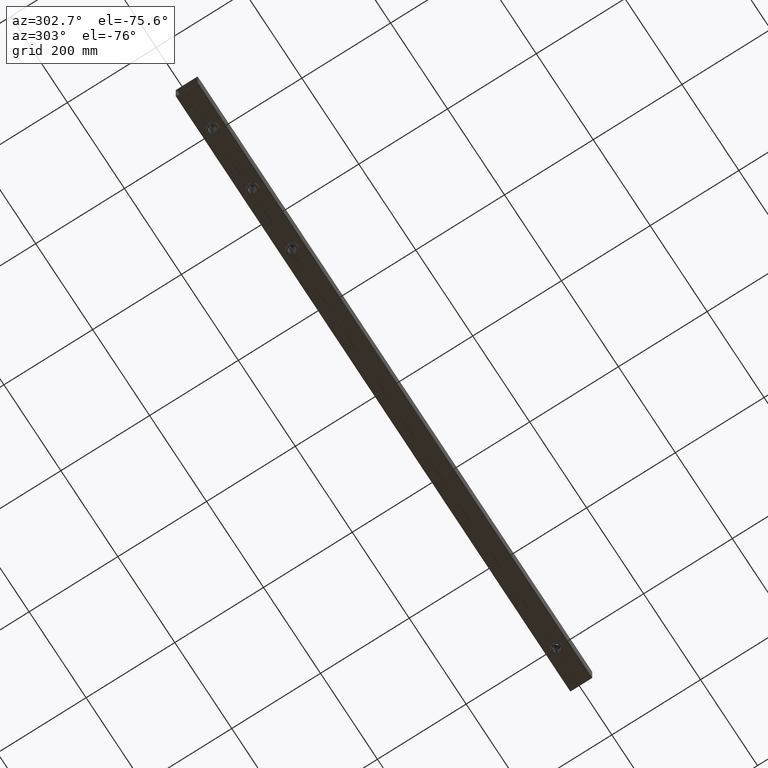
[diagram: clean part render]
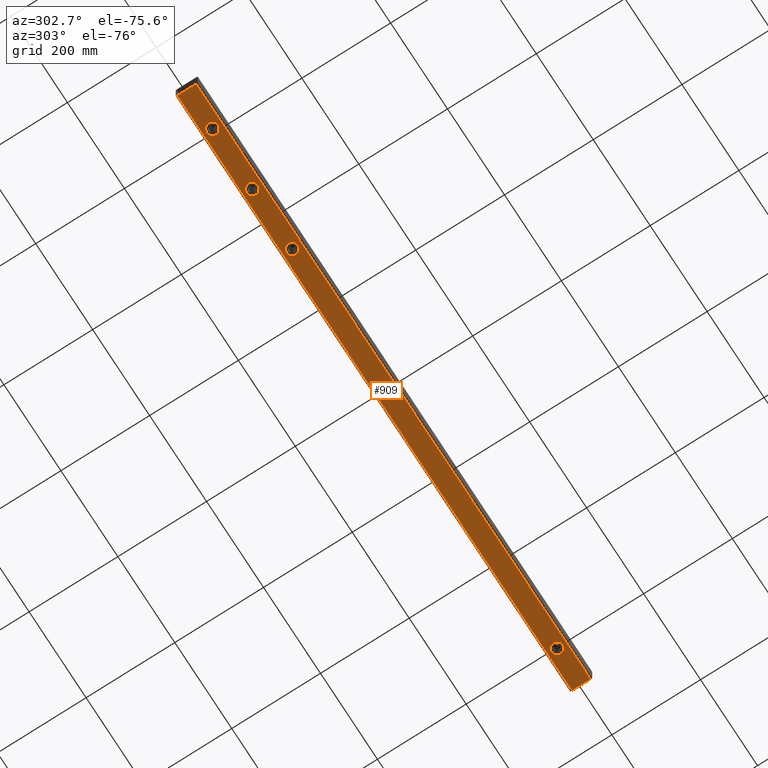
[diagram: same view with one face highlighted and labeled with its STEP entity id]
A machine part, auxiliary view. The second image highlights one B-rep face of the part: STEP entity #909.
In plain terms, the highlighted planar face has unit normal (-0, 0, 1).
Its self-contained STEP definition (entity closure, byte-faithful):
#3 = DIRECTION ( 'NONE',  ( 1.000000000000000000, 0.000000000000000000, 0.000000000000000000 ) ) ;
#32 = CARTESIAN_POINT ( 'NONE',  ( -615.1000000000002501, 2.548126824595394330E-13, -25.00000000000007105 ) ) ;
#35 = ORIENTED_EDGE ( 'NONE', *, *, #1179, .T. ) ;
#45 = AXIS2_PLACEMENT_3D ( 'NONE', #266, #651, #948 ) ;
#56 = VECTOR ( 'NONE', #567, 1000.000000000000000 ) ;
#80 = AXIS2_PLACEMENT_3D ( 'NONE', #1816, #1824, #1980 ) ;
#110 = CARTESIAN_POINT ( 'NONE',  ( -692.5000000000000000, 20.99999999999962697, -25.00000000000007461 ) ) ;
#120 = AXIS2_PLACEMENT_3D ( 'NONE', #2041, #530, #926 ) ;
#148 = EDGE_CURVE ( 'NONE', #1468, #637, #742, .T. ) ;
#177 = CARTESIAN_POINT ( 'NONE',  ( -692.5000000000000000, 20.99999999999962697, -25.00000000000007461 ) ) ;
#178 = VERTEX_POINT ( 'NONE', #32 ) ;
#191 = VERTEX_POINT ( 'NONE', #1054 ) ;
#223 = ORIENTED_EDGE ( 'NONE', *, *, #1552, .T. ) ;
#238 = PLANE ( 'NONE',  #1728 ) ;
#266 = CARTESIAN_POINT ( 'NONE',  ( -602.5000000000001137, 2.532696274926137348E-13, -25.00000000000007105 ) ) ;
#291 = ORIENTED_EDGE ( 'NONE', *, *, #1311, .T. ) ;
#309 = DIRECTION ( 'NONE',  ( 1.000000000000000000, 0.000000000000000000, 0.000000000000000000 ) ) ;
#322 = DIRECTION ( 'NONE',  ( 0.000000000000000000, 0.000000000000000000, 1.000000000000000000 ) ) ;
#410 = CIRCLE ( 'NONE', #45, 12.60000000000005471 ) ;
#435 = CARTESIAN_POINT ( 'NONE',  ( -335.1000000000001364, 2.562695891895751093E-13, -25.00000000000007105 ) ) ;
#449 = AXIS2_PLACEMENT_3D ( 'NONE', #1774, #937, #3 ) ;
#477 = ORIENTED_EDGE ( 'NONE', *, *, #1380, .T. ) ;
#508 = EDGE_CURVE ( 'NONE', #897, #834, #1560, .T. ) ;
#524 = DIRECTION ( 'NONE',  ( 1.000000000000000000, 3.061616997868382648E-16, -0.000000000000000000 ) ) ;
#530 = DIRECTION ( 'NONE',  ( 0.000000000000000000, 0.000000000000000000, 1.000000000000000000 ) ) ;
#542 = EDGE_CURVE ( 'NONE', #834, #897, #1301, .T. ) ;
#559 = ORIENTED_EDGE ( 'NONE', *, *, #542, .T. ) ;
#567 = DIRECTION ( 'NONE',  ( 1.000000000000000000, 3.061616997868382648E-16, -0.000000000000000000 ) ) ;
#586 = DIRECTION ( 'NONE',  ( 0.000000000000000000, -1.000000000000000000, 3.469446951953613794E-15 ) ) ;
#607 = DIRECTION ( 'NONE',  ( 0.000000000000000000, 0.000000000000000000, 1.000000000000000000 ) ) ;
#637 = VERTEX_POINT ( 'NONE', #1707 ) ;
#651 = DIRECTION ( 'NONE',  ( 0.000000000000000000, 0.000000000000000000, 1.000000000000000000 ) ) ;
#653 = CARTESIAN_POINT ( 'NONE',  ( -589.9000000000000909, 2.532696274926137348E-13, -25.00000000000007105 ) ) ;
#656 = CARTESIAN_POINT ( 'NONE',  ( -322.5000000000001137, 2.547265342226494616E-13, -25.00000000000007105 ) ) ;
#660 = CARTESIAN_POINT ( 'NONE',  ( 607.4999999999998863, 2.547265342226494616E-13, -25.00000000000007105 ) ) ;
#670 = CIRCLE ( 'NONE', #953, 12.59999999999999964 ) ;
#672 = EDGE_LOOP ( 'NONE', ( #291, #1983 ) ) ;
#673 = DIRECTION ( 'NONE',  ( 0.000000000000000000, 0.000000000000000000, 1.000000000000000000 ) ) ;
#716 = VERTEX_POINT ( 'NONE', #1747 ) ;
#726 = CIRCLE ( 'NONE', #449, 12.59999999999994458 ) ;
#742 = LINE ( 'NONE', #2068, #56 ) ;
#750 = CARTESIAN_POINT ( 'NONE',  ( -692.5000000000000000, -21.00000000000038369, -24.99999999999992895 ) ) ;
#759 = FACE_BOUND ( 'NONE', #672, .T. ) ;
#811 = VERTEX_POINT ( 'NONE', #911 ) ;
#813 = CARTESIAN_POINT ( 'NONE',  ( 692.5000000000000000, -20.99999999999996092, -24.99999999999992895 ) ) ;
#817 = AXIS2_PLACEMENT_3D ( 'NONE', #1004, #1672, #1530 ) ;
#823 = ORIENTED_EDGE ( 'NONE', *, *, #508, .T. ) ;
#834 = VERTEX_POINT ( 'NONE', #1098 ) ;
#837 = CIRCLE ( 'NONE', #120, 12.59999999999999964 ) ;
#858 = CARTESIAN_POINT ( 'NONE',  ( -692.5000000000000000, -21.00000000000038369, -24.99999999999992895 ) ) ;
#882 = EDGE_CURVE ( 'NONE', #716, #1137, #670, .T. ) ;
#897 = VERTEX_POINT ( 'NONE', #435 ) ;
#909 = ADVANCED_FACE ( 'NONE', ( #759, #1756, #1916, #1766, #969 ), #238, .F. ) ;
#911 = CARTESIAN_POINT ( 'NONE',  ( 594.8999999999999773, 2.562695891895751093E-13, -25.00000000000007105 ) ) ;
#919 = DIRECTION ( 'NONE',  ( -1.062211776130383366E-30, 3.469446951953613794E-15, 1.000000000000000000 ) ) ;
#926 = DIRECTION ( 'NONE',  ( 1.000000000000000000, 0.000000000000000000, 0.000000000000000000 ) ) ;
#933 = DIRECTION ( 'NONE',  ( -0.000000000000000000, -1.000000000000000000, 3.469446951953613400E-15 ) ) ;
#937 = DIRECTION ( 'NONE',  ( 0.000000000000000000, 0.000000000000000000, 1.000000000000000000 ) ) ;
#938 = CIRCLE ( 'NONE', #80, 12.60000000000005471 ) ;
#948 = DIRECTION ( 'NONE',  ( 1.000000000000000000, 0.000000000000000000, 0.000000000000000000 ) ) ;
#953 = AXIS2_PLACEMENT_3D ( 'NONE', #1789, #607, #1441 ) ;
#969 = FACE_OUTER_BOUND ( 'NONE', #1835, .T. ) ;
#977 = ORIENTED_EDGE ( 'NONE', *, *, #1013, .F. ) ;
#1004 = CARTESIAN_POINT ( 'NONE',  ( -322.5000000000001137, 2.547265342226494616E-13, -25.00000000000007105 ) ) ;
#1013 = EDGE_CURVE ( 'NONE', #1523, #1468, #1024, .T. ) ;
#1024 = LINE ( 'NONE', #858, #2001 ) ;
#1054 = CARTESIAN_POINT ( 'NONE',  ( 620.0999999999999091, 2.547265342226494616E-13, -25.00000000000007105 ) ) ;
#1057 = VERTEX_POINT ( 'NONE', #653 ) ;
#1069 = VECTOR ( 'NONE', #933, 1000.000000000000000 ) ;
#1083 = CIRCLE ( 'NONE', #1574, 12.59999999999994458 ) ;
#1098 = CARTESIAN_POINT ( 'NONE',  ( -309.9000000000001478, 2.547265342226494616E-13, -25.00000000000007105 ) ) ;
#1104 = LINE ( 'NONE', #813, #1069 ) ;
#1137 = VERTEX_POINT ( 'NONE', #1299 ) ;
#1145 = DIRECTION ( 'NONE',  ( -0.000000000000000000, -1.000000000000000000, 3.469446951953613400E-15 ) ) ;
#1179 = EDGE_CURVE ( 'NONE', #1137, #716, #837, .T. ) ;
#1224 = EDGE_LOOP ( 'NONE', ( #1406, #35 ) ) ;
#1299 = CARTESIAN_POINT ( 'NONE',  ( -475.1000000000001364, 2.562695891895751093E-13, -25.00000000000007105 ) ) ;
#1301 = CIRCLE ( 'NONE', #817, 12.59999999999999964 ) ;
#1304 = VECTOR ( 'NONE', #524, 1000.000000000000000 ) ;
#1311 = EDGE_CURVE ( 'NONE', #191, #811, #726, .T. ) ;
#1361 = CARTESIAN_POINT ( 'NONE',  ( 692.5000000000000000, 21.00000000000004974, -25.00000000000007461 ) ) ;
#1380 = EDGE_CURVE ( 'NONE', #1057, #178, #938, .T. ) ;
#1406 = ORIENTED_EDGE ( 'NONE', *, *, #882, .T. ) ;
#1441 = DIRECTION ( 'NONE',  ( 1.000000000000000000, 0.000000000000000000, 0.000000000000000000 ) ) ;
#1468 = VERTEX_POINT ( 'NONE', #1968 ) ;
#1523 = VERTEX_POINT ( 'NONE', #110 ) ;
#1530 = DIRECTION ( 'NONE',  ( 1.000000000000000000, 0.000000000000000000, 0.000000000000000000 ) ) ;
#1552 = EDGE_CURVE ( 'NONE', #178, #1057, #410, .T. ) ;
#1560 = CIRCLE ( 'NONE', #1902, 12.59999999999999964 ) ;
#1574 = AXIS2_PLACEMENT_3D ( 'NONE', #660, #673, #2046 ) ;
#1579 = EDGE_LOOP ( 'NONE', ( #477, #223 ) ) ;
#1610 = EDGE_CURVE ( 'NONE', #811, #191, #1083, .T. ) ;
#1672 = DIRECTION ( 'NONE',  ( 0.000000000000000000, 0.000000000000000000, 1.000000000000000000 ) ) ;
#1695 = LINE ( 'NONE', #177, #1304 ) ;
#1702 = ORIENTED_EDGE ( 'NONE', *, *, #1936, .T. ) ;
#1707 = CARTESIAN_POINT ( 'NONE',  ( 692.5000000000000000, -20.99999999999996092, -24.99999999999992895 ) ) ;
#1728 = AXIS2_PLACEMENT_3D ( 'NONE', #750, #919, #586 ) ;
#1742 = ORIENTED_EDGE ( 'NONE', *, *, #2099, .T. ) ;
#1747 = CARTESIAN_POINT ( 'NONE',  ( -449.9000000000001478, 2.547265342226494111E-13, -25.00000000000007105 ) ) ;
#1756 = FACE_BOUND ( 'NONE', #1579, .T. ) ;
#1766 = FACE_BOUND ( 'NONE', #2092, .T. ) ;
#1774 = CARTESIAN_POINT ( 'NONE',  ( 607.4999999999998863, 2.547265342226494616E-13, -25.00000000000007105 ) ) ;
#1789 = CARTESIAN_POINT ( 'NONE',  ( -462.5000000000001137, 2.547265342226494111E-13, -25.00000000000007105 ) ) ;
#1816 = CARTESIAN_POINT ( 'NONE',  ( -602.5000000000001137, 2.532696274926137348E-13, -25.00000000000007105 ) ) ;
#1824 = DIRECTION ( 'NONE',  ( 0.000000000000000000, 0.000000000000000000, 1.000000000000000000 ) ) ;
#1835 = EDGE_LOOP ( 'NONE', ( #1702, #2002, #977, #1742 ) ) ;
#1902 = AXIS2_PLACEMENT_3D ( 'NONE', #656, #322, #309 ) ;
#1916 = FACE_BOUND ( 'NONE', #1224, .T. ) ;
#1936 = EDGE_CURVE ( 'NONE', #2159, #637, #1104, .T. ) ;
#1968 = CARTESIAN_POINT ( 'NONE',  ( -692.5000000000000000, -21.00000000000038369, -24.99999999999992895 ) ) ;
#1980 = DIRECTION ( 'NONE',  ( 1.000000000000000000, 0.000000000000000000, 0.000000000000000000 ) ) ;
#1983 = ORIENTED_EDGE ( 'NONE', *, *, #1610, .T. ) ;
#2001 = VECTOR ( 'NONE', #1145, 1000.000000000000000 ) ;
#2002 = ORIENTED_EDGE ( 'NONE', *, *, #148, .F. ) ;
#2041 = CARTESIAN_POINT ( 'NONE',  ( -462.5000000000001137, 2.547265342226494111E-13, -25.00000000000007105 ) ) ;
#2046 = DIRECTION ( 'NONE',  ( 1.000000000000000000, 0.000000000000000000, 0.000000000000000000 ) ) ;
#2068 = CARTESIAN_POINT ( 'NONE',  ( -692.5000000000000000, -21.00000000000038369, -24.99999999999992895 ) ) ;
#2092 = EDGE_LOOP ( 'NONE', ( #559, #823 ) ) ;
#2099 = EDGE_CURVE ( 'NONE', #1523, #2159, #1695, .T. ) ;
#2159 = VERTEX_POINT ( 'NONE', #1361 ) ;